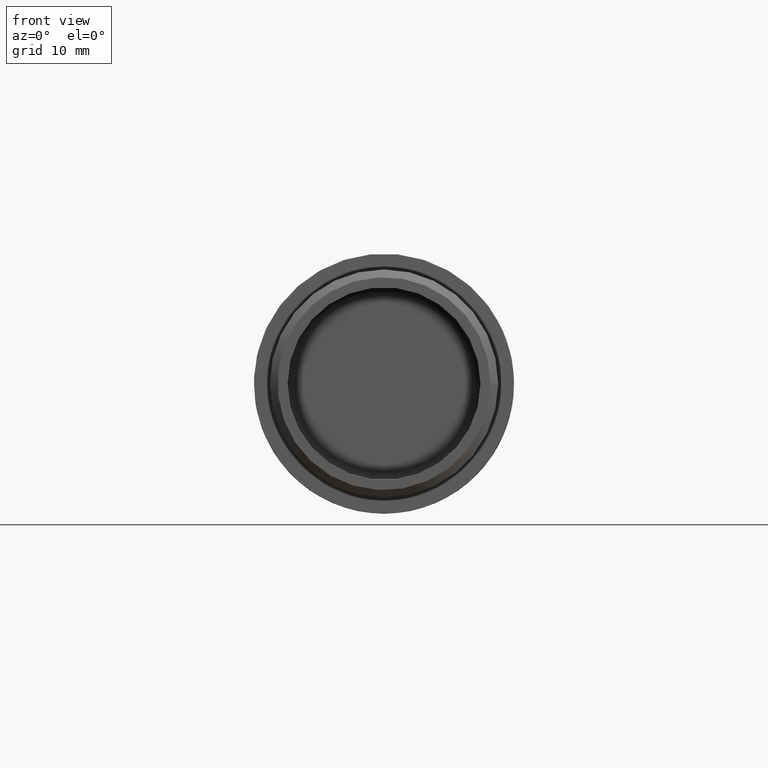
[diagram: clean part render]
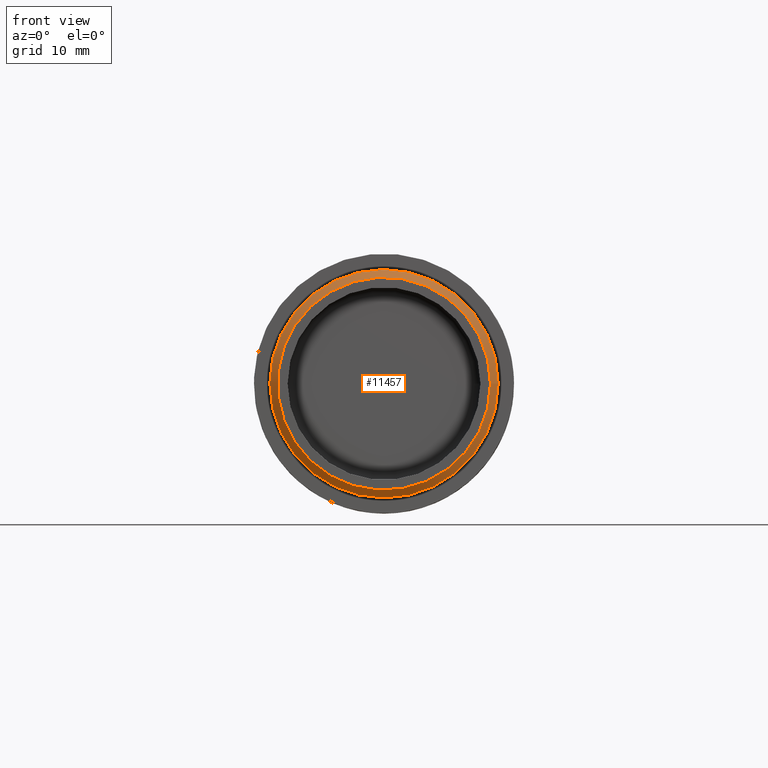
[diagram: same view with one face highlighted and labeled with its STEP entity id]
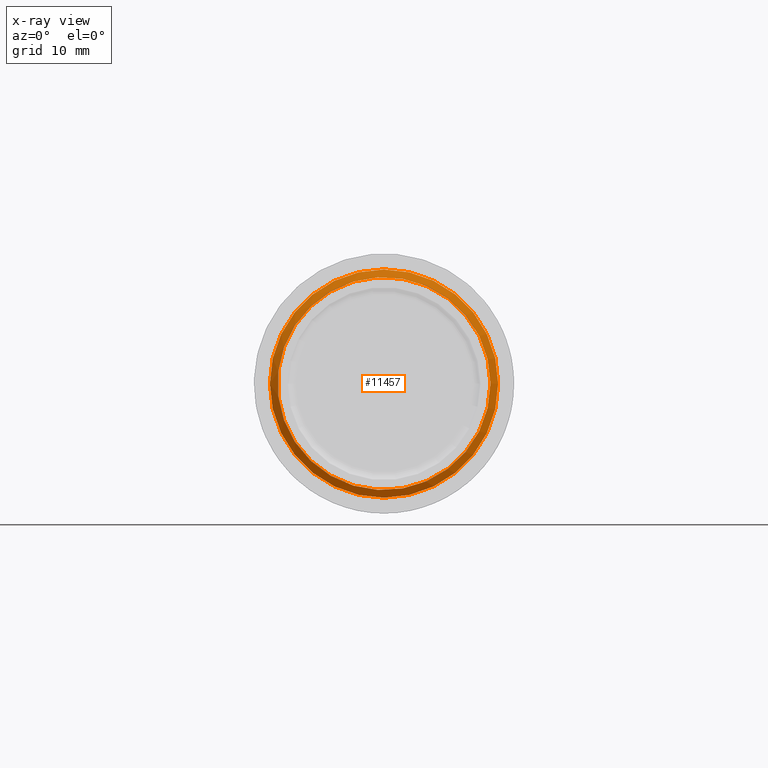
[diagram: x-ray of the same camera — body ghosted, the highlighted face saturated]
A machine part, front view. The second image highlights one B-rep face of the part: STEP entity #11457.
The next image is the same camera in x-ray: the body ghosted, the highlighted face saturated — about 0% of this face is hidden behind the body in this view.
In plain terms, the highlighted conical surface has half-angle 45 deg.
Its self-contained STEP definition (entity closure, byte-faithful):
#271 = DIRECTION ( 'NONE',  ( 1.000000000000000000, 0.0000000000000000000, 0.0000000000000000000 ) ) ;
#1412 = CARTESIAN_POINT ( 'NONE',  ( 1.358921150969322700E-015, -20.00000000000000000, 0.0000000000000000000 ) ) ;
#1528 = DIRECTION ( 'NONE',  ( -6.794605754846611700E-017, 1.000000000000000000, 0.0000000000000000000 ) ) ;
#2030 = CARTESIAN_POINT ( 'NONE',  ( 1.290975093420855900E-015, -18.99999999999999300, 0.0000000000000000000 ) ) ;
#2459 = CIRCLE ( 'NONE', #8875, 14.80000000000000100 ) ;
#3054 = CARTESIAN_POINT ( 'NONE',  ( 14.80000000000000200, -18.99999999999999300, 0.0000000000000000000 ) ) ;
#3858 = DIRECTION ( 'NONE',  ( -1.000000000000000000, 0.0000000000000000000, 0.0000000000000000000 ) ) ;
#5713 = EDGE_CURVE ( 'NONE', #11775, #11775, #11441, .T. ) ;
#6863 = DIRECTION ( 'NONE',  ( -6.794605754846611700E-017, 1.000000000000000000, 0.0000000000000000000 ) ) ;
#7419 = CARTESIAN_POINT ( 'NONE',  ( 13.79999999999998800, -20.00000000000000000, 0.0000000000000000000 ) ) ;
#7692 = ORIENTED_EDGE ( 'NONE', *, *, #10492, .F. ) ;
#8450 = DIRECTION ( 'NONE',  ( 6.794605754846613000E-017, -1.000000000000000000, 0.0000000000000000000 ) ) ;
#8539 = FACE_BOUND ( 'NONE', #11463, .T. ) ;
#8875 = AXIS2_PLACEMENT_3D ( 'NONE', #2030, #6863, #13925 ) ;
#10371 = EDGE_LOOP ( 'NONE', ( #7692 ) ) ;
#10492 = EDGE_CURVE ( 'NONE', #14960, #14960, #2459, .T. ) ;
#11441 = CIRCLE ( 'NONE', #12152, 13.79999999999998600 ) ;
#11457 = ADVANCED_FACE ( 'NONE', ( #11852, #8539 ), #14373, .T. ) ;
#11463 = EDGE_LOOP ( 'NONE', ( #12077 ) ) ;
#11775 = VERTEX_POINT ( 'NONE', #7419 ) ;
#11852 = FACE_OUTER_BOUND ( 'NONE', #10371, .T. ) ;
#12077 = ORIENTED_EDGE ( 'NONE', *, *, #5713, .F. ) ;
#12152 = AXIS2_PLACEMENT_3D ( 'NONE', #1412, #8450, #271 ) ;
#12793 = AXIS2_PLACEMENT_3D ( 'NONE', #14514, #1528, #3858 ) ;
#13925 = DIRECTION ( 'NONE',  ( 1.000000000000000000, 0.0000000000000000000, 0.0000000000000000000 ) ) ;
#14373 = CONICAL_SURFACE ( 'NONE', #12793, 13.79999999999998600, 0.7853981633974517200 ) ;
#14514 = CARTESIAN_POINT ( 'NONE',  ( 1.358921150969322700E-015, -20.00000000000000000, 0.0000000000000000000 ) ) ;
#14960 = VERTEX_POINT ( 'NONE', #3054 ) ;